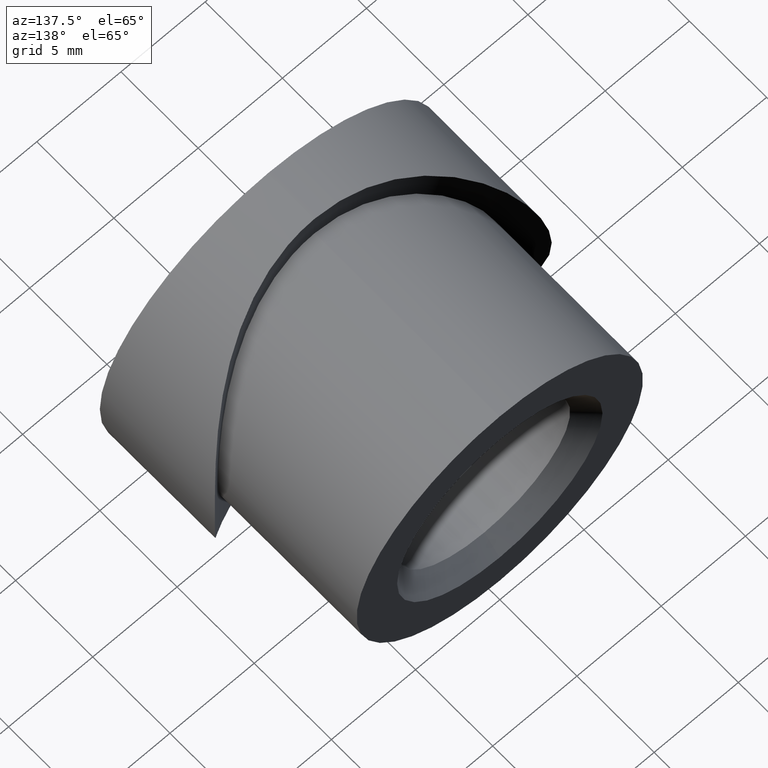
[diagram: clean part render]
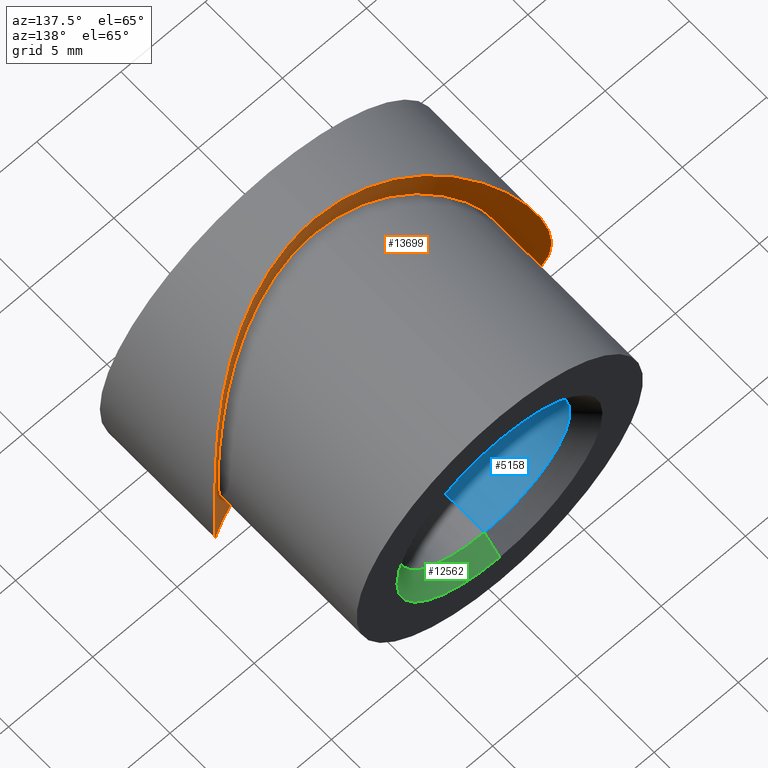
[diagram: same view with three faces highlighted in distinct colors, each labeled with its STEP entity id]
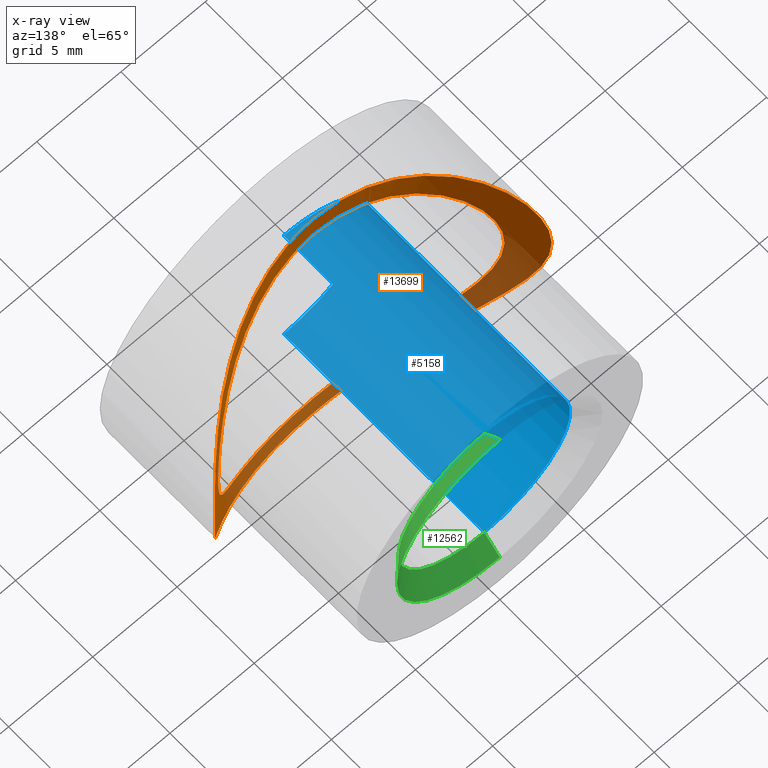
[diagram: x-ray of the same camera — body ghosted, the three highlighted faces saturated]
A machine part, auxiliary view with three faces highlighted in distinct colors.
The next image is the same camera in x-ray (body ghosted, the three faces saturated) — at least one of them is partly hidden behind the body in this view.
Their STEP definitions:

[orange] entity #13699 — the highlighted cylindrical surface (partial cylindrical patch) has radius 13.45 mm, axis along (-0, -0, 1).
#7 = CARTESIAN_POINT ( 'NONE',  ( -8.500175873248078800, 6.026492424508852300, -0.2796854804462817200 ) ) ;
#55 = CARTESIAN_POINT ( 'NONE',  ( -7.612991161103129100, 5.358746173430602300, 3.821309508722853500 ) ) ;
#102 = CARTESIAN_POINT ( 'NONE',  ( -6.900764176588434200, 4.903866751921642100, 4.970120762304397900 ) ) ;
#285 = CARTESIAN_POINT ( 'NONE',  ( -2.275365995284327300, 3.181942036199322500, -8.209564339675338800 ) ) ;
#331 = CARTESIAN_POINT ( 'NONE',  ( -0.2889378149297785500, 2.999999999999996400, -8.499999999999998200 ) ) ;
#335 = CARTESIAN_POINT ( 'NONE',  ( 9.639878361173988000, 7.069446285023819800, 2.679750404850660400 ) ) ;
#389 = ORIENTED_EDGE ( 'NONE', *, *, #7281, .T. ) ;
#434 = CARTESIAN_POINT ( 'NONE',  ( 0.0000000000000000000, 16.44999999999999900, -10.00000000000000000 ) ) ;
#435 = CARTESIAN_POINT ( 'NONE',  ( 9.982610433713347200, 7.435974106570739700, 0.6810471933536530500 ) ) ;
#481 = CARTESIAN_POINT ( 'NONE',  ( 5.111962595166546400, 4.005593408410363500, -8.600777973116308300 ) ) ;
#511 = ORIENTED_EDGE ( 'NONE', *, *, #12672, .F. ) ;
#606 = FACE_BOUND ( 'NONE', #5147, .T. ) ;
#660 = CARTESIAN_POINT ( 'NONE',  ( -7.332763691606595000, 5.171689255180033300, 6.806509566438757400 ) ) ;
#709 = CARTESIAN_POINT ( 'NONE',  ( -9.654513952800341400, 7.083405606150288100, -2.692520971745766100 ) ) ;
#735 = CARTESIAN_POINT ( 'NONE',  ( 1.224646865619358800E-015, 2.999999999999996900, 10.00000000000000000 ) ) ;
#755 = CARTESIAN_POINT ( 'NONE',  ( -2.693214239503646900, 3.268322119340624400, 9.636333990754822700 ) ) ;
#803 = CARTESIAN_POINT ( 'NONE',  ( -9.999977895142121700, 7.455393721915363000, 0.3456165514657086900 ) ) ;
#895 = CARTESIAN_POINT ( 'NONE',  ( 8.272232801458596200, 5.844440733795266900, 1.975094218430345900 ) ) ;
#965 = B_SPLINE_CURVE_WITH_KNOTS ( 'NONE', 3,
 ( #5951, #1515, #3647, #1473, #4727, #5797, #8087, #9226, #2565, #481, #8187, #7114, #9141, #12461, #3787, #9178, #10332, #3695, #13581, #1426, #8235, #3598, #12558, #11447, #13678, #11364, #5847, #3741, #435, #7068, #6970, #1376, #335, #2522, #11543, #11493, #4872, #5998, #5900, #9273, #10287, #4779, #2610, #8039, #12507, #1561, #13725, #9317, #2658, #10425 ),
 .UNSPECIFIED., .F., .F.,
 ( 4, 2, 2, 2, 2, 2, 2, 2, 2, 2, 2, 2, 2, 2, 2, 2, 2, 2, 2, 2, 2, 2, 2, 2, 4 ),
 ( 1.432267645603894700E-019, 0.002044634869169815100, 0.003066952303754722300, 0.004089269738339628600, 0.005111587172924535700, 0.006133904607509442800, 0.008178539476679257100, 0.009200856911264168600, 0.01022317434584907500, 0.01226780921501889300, 0.01329012664960380400, 0.01431244408418871600, 0.01533476151877362500, 0.01635707895335853900, 0.01737939638794344700, 0.01840171382252836100, 0.01942403125711327300, 0.02044634869169818100, 0.02249098356086800700, 0.02351330099545291500, 0.02453561843003782700, 0.02658025329920765000, 0.02862488816837747300, 0.03066952303754729900, 0.03271415790671712600 ),
 .UNSPECIFIED. ) ;
#992 = CARTESIAN_POINT ( 'NONE',  ( 6.746681932692522000, 4.809066676585230100, 5.198683946631315500 ) ) ;
#1089 = CARTESIAN_POINT ( 'NONE',  ( 0.5792395147149966800, 2.999999999999996400, -8.500000000000001800 ) ) ;
#1105 = CARTESIAN_POINT ( 'NONE',  ( -1.139145406963695500, 3.036483189630236900, 8.442621825578633800 ) ) ;
#1152 = CARTESIAN_POINT ( 'NONE',  ( -8.486057597824270700, 6.014930927325920600, -0.5641180148461151200 ) ) ;
#1315 = CARTESIAN_POINT ( 'NONE',  ( 1.149718743651191100, 3.046173087354749700, 8.426778134345596500 ) ) ;
#1376 = CARTESIAN_POINT ( 'NONE',  ( 9.723699100847467100, 7.156879312681614800, 2.358572600559647000 ) ) ;
#1426 = CARTESIAN_POINT ( 'NONE',  ( 9.328360622382760400, 6.759073173045164800, -3.617378218463643200 ) ) ;
#1473 = CARTESIAN_POINT ( 'NONE',  ( 2.361936728301609700, 3.204783231972737000, -9.722932823276236600 ) ) ;
#1515 = CARTESIAN_POINT ( 'NONE',  ( 0.6928124693824041500, 2.999999999999996900, -10.00000000000000000 ) ) ;
#1561 = CARTESIAN_POINT ( 'NONE',  ( 3.339930489356901500, 3.405910383273057700, 9.448747293761261500 ) ) ;
#1746 = CARTESIAN_POINT ( 'NONE',  ( -9.981761949518915600, 7.435031219351060400, 0.6932880819230860000 ) ) ;
#1793 = CARTESIAN_POINT ( 'NONE',  ( -9.327444656109323200, 6.758218848093421500, 3.619488619934345700 ) ) ;
#1840 = CARTESIAN_POINT ( 'NONE',  ( -9.722718940331901600, 7.155853788049833900, 2.362507923113869700 ) ) ;
#1889 = CARTESIAN_POINT ( 'NONE',  ( -7.553097224796675700, 5.308946874151402500, -6.583623013612188000 ) ) ;
#1988 = CARTESIAN_POINT ( 'NONE',  ( -6.658377051632968800, 4.760444234760949900, -7.467753764576831300 ) ) ;
#2084 = CARTESIAN_POINT ( 'NONE',  ( 8.213144656435922300, 5.797880320624016400, -2.261316873074024500 ) ) ;
#2105 = CARTESIAN_POINT ( 'NONE',  ( -3.057591812896682400, 3.349479976828228600, 7.935909559820935900 ) ) ;
#2132 = CARTESIAN_POINT ( 'NONE',  ( 8.042672949559547000, 5.666336791972201000, -2.805008992030661100 ) ) ;
#2154 = CARTESIAN_POINT ( 'NONE',  ( -2.255784632174870900, 3.187676294430515300, 8.200067566575407700 ) ) ;
#2196 = CARTESIAN_POINT ( 'NONE',  ( -5.223704418168273900, 4.046379758787070500, 6.727707479755836500 ) ) ;
#2338 = CARTESIAN_POINT ( 'NONE',  ( -1.152364690619607000, 3.046372695558841900, -8.426461002746975700 ) ) ;
#2425 = VERTEX_POINT ( 'NONE', #735 ) ;
#2471 = CYLINDRICAL_SURFACE ( 'NONE', #12947, 13.45000000000000100 ) ;
#2522 = CARTESIAN_POINT ( 'NONE',  ( 9.442819036225074600, 6.871105937171593700, 3.307791665089129900 ) ) ;
#2565 = CARTESIAN_POINT ( 'NONE',  ( 4.542938130963912100, 3.786780420074221400, -8.914440894159248800 ) ) ;
#2610 = CARTESIAN_POINT ( 'NONE',  ( 6.181966442926166000, 4.490786429201897100, 7.886136779715221800 ) ) ;
#2658 = CARTESIAN_POINT ( 'NONE',  ( 0.6836301136196195600, 2.999999999999996400, 9.999999999999998200 ) ) ;
#2803 = CARTESIAN_POINT ( 'NONE',  ( -1.370352680204483000, 3.065584903745286500, 9.911641172185859700 ) ) ;
#2853 = CARTESIAN_POINT ( 'NONE',  ( -9.911372312729261200, 7.357699267434973000, 1.371465952863617500 ) ) ;
#2955 = CARTESIAN_POINT ( 'NONE',  ( -8.952648161923738400, 6.406595511195461300, 4.500864096956267000 ) ) ;
#3011 = CARTESIAN_POINT ( 'NONE',  ( -4.559132965745660300, 3.780323342721628100, 8.924776339083310400 ) ) ;
#3062 = CARTESIAN_POINT ( 'NONE',  ( 5.226909659594428900, 4.047571902342230700, -6.725588191749118900 ) ) ;
#3159 = CARTESIAN_POINT ( 'NONE',  ( -6.169942369151726800, 4.495439777570549500, -7.876112138067259800 ) ) ;
#3212 = CARTESIAN_POINT ( 'NONE',  ( -0.3456757120790550100, 2.999999999999996000, -9.999999999999992900 ) ) ;
#3227 = CARTESIAN_POINT ( 'NONE',  ( -8.385859457549054600, 5.934055155121853900, -1.417184372340660700 ) ) ;
#3255 = CARTESIAN_POINT ( 'NONE',  ( 6.213916181435961600, 4.519576077072032100, -5.806026683379980300 ) ) ;
#3272 = CARTESIAN_POINT ( 'NONE',  ( -8.215429990002759200, 5.799640880773095500, -2.254087759438235100 ) ) ;
#3298 = CARTESIAN_POINT ( 'NONE',  ( 1.430640203736850900, 3.073398863584304600, 8.383490870426232500 ) ) ;
#3358 = CARTESIAN_POINT ( 'NONE',  ( -8.046441304176282100, 5.669075725946751000, 2.795500513134633500 ) ) ;
#3387 = CARTESIAN_POINT ( 'NONE',  ( 4.541824832585228400, 3.787763508574210300, 7.189971442628251300 ) ) ;
#3598 = CARTESIAN_POINT ( 'NONE',  ( 9.639743922445001400, 7.069306619524739200, -2.680255240991826300 ) ) ;
#3647 = CARTESIAN_POINT ( 'NONE',  ( 1.369403654986343100, 3.053161455334599200, -9.928816888606604600 ) ) ;
#3695 = CARTESIAN_POINT ( 'NONE',  ( 8.649230539514967100, 6.140309248789511900, -5.057846401117871900 ) ) ;
#3741 = CARTESIAN_POINT ( 'NONE',  ( 10.00001195805195100, 7.455431592392099700, 0.3408204138369244600 ) ) ;
#3787 = CARTESIAN_POINT ( 'NONE',  ( 7.541389901650789300, 5.310464725808679500, -6.574678123903396500 ) ) ;
#3933 = CARTESIAN_POINT ( 'NONE',  ( -3.647908865428769700, 3.500241859040008800, 9.316764053845558300 ) ) ;
#4025 = CARTESIAN_POINT ( 'NONE',  ( -5.125402177620010500, 4.001132583004995500, 8.610669834195389800 ) ) ;
#4175 = CARTESIAN_POINT ( 'NONE',  ( 8.034839785016947300, 5.663215320660387200, 2.787476035339022700 ) ) ;
#4229 = CARTESIAN_POINT ( 'NONE',  ( -3.660928046515671500, 3.503953304415936600, -9.311603496860344700 ) ) ;
#4280 = CARTESIAN_POINT ( 'NONE',  ( 8.201125407602745600, 5.789094028268530100, 2.251713806693307800 ) ) ;
#4329 = CARTESIAN_POINT ( 'NONE',  ( 1.480016496645224400E-016, 2.999999999999997300, -10.00000000000000000 ) ) ;
#4348 = CARTESIAN_POINT ( 'NONE',  ( -6.395797733192636300, 4.616348684314131900, -5.605135866156802000 ) ) ;
#4395 = CARTESIAN_POINT ( 'NONE',  ( -5.640988934732198400, 4.232652308179298800, -6.381313976993380900 ) ) ;
#4490 = CARTESIAN_POINT ( 'NONE',  ( -7.725936159783328700, 5.439550844503355800, -3.554860141302640400 ) ) ;
#4535 = CARTESIAN_POINT ( 'NONE',  ( -6.739968371851108300, 4.808956142749554600, 5.186111273598413600 ) ) ;
#4727 = CARTESIAN_POINT ( 'NONE',  ( 2.690427507752437100, 3.267702392545322400, -9.637184652507045300 ) ) ;
#4779 = CARTESIAN_POINT ( 'NONE',  ( 6.663736969602333600, 4.755219293914633400, 7.482572283424668000 ) ) ;
#4872 = CARTESIAN_POINT ( 'NONE',  ( 8.647152279869523300, 6.138538418109910700, 5.061471254169259900 ) ) ;
#5027 = CARTESIAN_POINT ( 'NONE',  ( 1.480016496645224400E-016, 2.999999999999997300, -10.00000000000000000 ) ) ;
#5063 = CARTESIAN_POINT ( 'NONE',  ( -5.920765303193742400, 4.369750619852039700, 8.065226831494932500 ) ) ;
#5113 = CARTESIAN_POINT ( 'NONE',  ( -8.127492011892865500, 5.731048241642624500, 5.834603666426794200 ) ) ;
#5147 = EDGE_LOOP ( 'NONE', ( #11597, #389 ) ) ;
#5213 = CARTESIAN_POINT ( 'NONE',  ( -8.953664433035914500, 6.407435470530977300, -4.499463903643729200 ) ) ;
#5243 = ORIENTED_EDGE ( 'NONE', *, *, #10605, .F. ) ;
#5312 = CARTESIAN_POINT ( 'NONE',  ( 5.216873861441369400, 4.043616553864677800, 6.732731669731116100 ) ) ;
#5360 = CARTESIAN_POINT ( 'NONE',  ( -1.377793393266360600, 3.066373353554716200, -9.910576755955354100 ) ) ;
#5384 = VERTEX_POINT ( 'NONE', #13520 ) ;
#5405 = CARTESIAN_POINT ( 'NONE',  ( 7.939366262903695000, 5.592449133052320500, 3.048414062834695400 ) ) ;
#5451 = CARTESIAN_POINT ( 'NONE',  ( 6.404388853050261500, 4.614843655872771700, 5.615161143631574700 ) ) ;
#5514 = CARTESIAN_POINT ( 'NONE',  ( -5.225970053679573900, 4.047364419143546500, -6.725885423336595900 ) ) ;
#5590 = EDGE_LOOP ( 'NONE', ( #5243, #511 ) ) ;
#5726 = CARTESIAN_POINT ( 'NONE',  ( 3.572725185688622000, 3.480434726805918800, 7.717824687037374800 ) ) ;
#5797 = CARTESIAN_POINT ( 'NONE',  ( 3.333577867812950800, 3.415483170243556600, -9.434033432218480900 ) ) ;
#5847 = CARTESIAN_POINT ( 'NONE',  ( 9.999988029650376500, 7.455404989263312700, -0.3415217745901048500 ) ) ;
#5900 = CARTESIAN_POINT ( 'NONE',  ( 7.936587232922568600, 5.588490723815538400, 6.091752204375290500 ) ) ;
#5951 = CARTESIAN_POINT ( 'NONE',  ( 1.480016496645224400E-016, 2.999999999999997300, -10.00000000000000000 ) ) ;
#5997 = DIRECTION ( 'NONE',  ( -0.0000000000000000000, -0.0000000000000000000, 1.000000000000000000 ) ) ;
#5998 = CARTESIAN_POINT ( 'NONE',  ( 8.123208101144644600, 5.727815718240517400, 5.840498574394712400 ) ) ;
#6189 = CARTESIAN_POINT ( 'NONE',  ( -6.661698974098986700, 4.762377204899780600, 7.464712109148377000 ) ) ;
#6241 = CARTESIAN_POINT ( 'NONE',  ( -9.929519584366760300, 7.375454775726205400, -1.365265421734621000 ) ) ;
#6290 = CARTESIAN_POINT ( 'NONE',  ( -9.637451730022753800, 7.066947292307562000, 2.688473457017360500 ) ) ;
#6481 = CARTESIAN_POINT ( 'NONE',  ( 6.902535138892500500, 4.904916219338627300, -4.967719128159848700 ) ) ;
#6534 = CARTESIAN_POINT ( 'NONE',  ( -2.376514775901076100, 3.207379302557241500, -9.719397923783720500 ) ) ;
#6579 = CARTESIAN_POINT ( 'NONE',  ( -5.129290870506729000, 4.003007537345904000, -8.607872855251065000 ) ) ;
#6597 = CARTESIAN_POINT ( 'NONE',  ( -4.308156095992034200, 3.706070697626767400, 7.332590547434656400 ) ) ;
#6628 = CARTESIAN_POINT ( 'NONE',  ( -3.345668504506728300, 3.418583204672849300, -9.429752002093128000 ) ) ;
#6648 = CARTESIAN_POINT ( 'NONE',  ( -8.427030926928527100, 5.967201911122325300, 1.147974239795132900 ) ) ;
#6696 = CARTESIAN_POINT ( 'NONE',  ( -5.640021965118812400, 4.232145397260779000, 6.382357838078927000 ) ) ;
#6811 = CARTESIAN_POINT ( 'NONE',  ( 6.704909903060782200E-014, 2.999999999999513700, 8.500000000000765600 ) ) ;
#6970 = CARTESIAN_POINT ( 'NONE',  ( 9.860233819173661400, 7.301874216862191100, 1.699699369640559600 ) ) ;
#7068 = CARTESIAN_POINT ( 'NONE',  ( 9.913006127448383600, 7.359483876266066800, 1.359649170936497500 ) ) ;
#7114 = CARTESIAN_POINT ( 'NONE',  ( 6.184840822006905500, 4.492068991472705400, -7.884254400224293100 ) ) ;
#7281 = EDGE_CURVE ( 'NONE', #12417, #5384, #13207, .T. ) ;
#7304 = CARTESIAN_POINT ( 'NONE',  ( -6.892677501451333700, 4.897480211025297500, 7.251826852314725800 ) ) ;
#7352 = CARTESIAN_POINT ( 'NONE',  ( -3.332398114870711600, 3.415232741113633600, 9.434376424822581000 ) ) ;
#7404 = CARTESIAN_POINT ( 'NONE',  ( -9.859276388493091400, 7.300842306687519200, 1.705103039340171200 ) ) ;
#7503 = CARTESIAN_POINT ( 'NONE',  ( -1.706728546298531300, 3.104531874529787800, 9.859066267355034400 ) ) ;
#7550 = CARTESIAN_POINT ( 'NONE',  ( 6.739732142945722900, 4.808801996569124000, -5.186489111393125700 ) ) ;
#7600 = CARTESIAN_POINT ( 'NONE',  ( 2.804536432448860400, 3.284999034762399600, -8.043319610308683900 ) ) ;
#7643 = CARTESIAN_POINT ( 'NONE',  ( 5.643211233748562700, 4.233709886629712000, -6.379260741137814600 ) ) ;
#7721 = B_SPLINE_CURVE_WITH_KNOTS ( 'NONE', 3,
 ( #13236, #1089, #14175, #13187, #7600, #8812, #10920, #3062, #7643, #3255, #14352, #7550, #6481, #12019, #10815, #2132, #2084, #7741, #14222, #8856, #9895, #9847, #9695, #895, #4280, #4175, #5405, #12067, #13148, #992, #5451, #11923, #5312, #3387, #12251, #9943, #5726, #9033, #13369, #3298, #1315, #11248, #10074, #6811 ),
 .UNSPECIFIED., .F., .F.,
 ( 4, 2, 2, 2, 2, 2, 2, 2, 2, 2, 2, 2, 2, 2, 2, 2, 2, 2, 2, 2, 2, 4 ),
 ( 2.424159808634754100E-019, 0.001710273666269492500, 0.003420547332538985000, 0.005130820998808479800, 0.006841094665077975200, 0.007696231498212723200, 0.008551368331347470500, 0.01026164199761696700, 0.01197191566388646100, 0.01282705249702120900, 0.01368218933015595700, 0.01539246299642545300, 0.01624759982956020000, 0.01710273666269494800, 0.01881301032896444700, 0.02052328399523394700, 0.02223355766150344700, 0.02308869449463819500, 0.02394383132777294300, 0.02565410499404244300, 0.02650924182717719400, 0.02736437866031193900 ),
 .UNSPECIFIED. ) ;
#7741 = CARTESIAN_POINT ( 'NONE',  ( 8.383439508370072300, 5.932126321716803700, -1.431002025329638000 ) ) ;
#7758 = CARTESIAN_POINT ( 'NONE',  ( -7.605744980889992000, 5.355871924725391000, -3.804930131842815000 ) ) ;
#7808 = CARTESIAN_POINT ( 'NONE',  ( -8.485348872305136700, 6.014351456145276700, 0.5758034507651039700 ) ) ;
#7850 = CARTESIAN_POINT ( 'NONE',  ( -6.902231944866415800, 4.904731779995170600, -4.968157060046266300 ) ) ;
#8035 = CARTESIAN_POINT ( 'NONE',  ( -1.677486838287417800E-016, 2.999999999999996400, -8.500000000000000000 ) ) ;
#8039 = CARTESIAN_POINT ( 'NONE',  ( 5.128552927785058600, 4.002612997085131000, 8.608472993321735000 ) ) ;
#8087 = CARTESIAN_POINT ( 'NONE',  ( 3.645099090485948600, 3.499487306597341500, -9.317807476157451400 ) ) ;
#8187 = CARTESIAN_POINT ( 'NONE',  ( 5.389062262098942600, 4.123363174215502800, -8.429794706603226800 ) ) ;
#8235 = CARTESIAN_POINT ( 'NONE',  ( 9.442537252971174400, 6.870826684151739800, -3.308613194894672200 ) ) ;
#8420 = CARTESIAN_POINT ( 'NONE',  ( -8.652884237711754500, 6.143288246280512500, 5.051979786124730000 ) ) ;
#8515 = CARTESIAN_POINT ( 'NONE',  ( -7.541868453716253000, 5.310805659112412900, 6.574080973460612000 ) ) ;
#8525 = B_SPLINE_CURVE_WITH_KNOTS ( 'NONE', 3,
 ( #9649, #14025, #10567, #2803, #7503, #13974, #755, #7352, #3933, #3011, #4025, #5063, #12796, #6189, #7304, #660, #8515, #9503, #5113, #8420, #2955, #1793, #9551, #6290, #1840, #7404, #2853, #1746, #803, #11732, #6241, #709, #9601, #5213, #12949, #14074, #1889, #8566, #1988, #3159, #13041, #6579, #9746, #4229, #6628, #12116, #6534, #11014, #5360, #8667, #3212, #4329 ),
 .UNSPECIFIED., .F., .F.,
 ( 4, 2, 2, 2, 2, 2, 2, 2, 2, 2, 2, 2, 2, 2, 2, 2, 2, 2, 2, 2, 2, 2, 2, 2, 2, 4 ),
 ( 0.03271415790671712600, 0.03373431941589433200, 0.03475448092507154400, 0.03577464243424875000, 0.03679480394342595600, 0.03883512696178037500, 0.03985528847095758100, 0.04087544998013478700, 0.04189561148931199300, 0.04291577299848919900, 0.04495609601684361100, 0.04597625752602081700, 0.04699641903519803000, 0.04801658054437523600, 0.04903674205355244800, 0.05107706507190686000, 0.05311738809026127900, 0.05515771110861569800, 0.05719803412697010300, 0.05821819563614730900, 0.05923835714532451500, 0.06127868016367892700, 0.06229884167285613300, 0.06331900318203334500, 0.06433916469121053700, 0.06535932620038774300 ),
 .UNSPECIFIED. ) ;
#8566 = CARTESIAN_POINT ( 'NONE',  ( -6.891752116506600200, 4.896917581239202700, -7.252730188196417200 ) ) ;
#8667 = CARTESIAN_POINT ( 'NONE',  ( -0.6949154676624639300, 3.013599092808664400, -9.981730248960568400 ) ) ;
#8782 = CARTESIAN_POINT ( 'NONE',  ( -7.352293673409922000, 5.181848663023594700, 4.299344623432571000 ) ) ;
#8812 = CARTESIAN_POINT ( 'NONE',  ( 3.830459733445616100, 3.546114800336617600, -7.608415944528853300 ) ) ;
#8856 = CARTESIAN_POINT ( 'NONE',  ( 8.484888285087954800, 6.013977093938762200, -0.5817263091585258600 ) ) ;
#8875 = CARTESIAN_POINT ( 'NONE',  ( -3.820437731939016600, 3.551465255785948300, 7.598114806985881500 ) ) ;
#8922 = CARTESIAN_POINT ( 'NONE',  ( -8.429129136226151800, 5.968892133467311300, -1.131894294131854200 ) ) ;
#8969 = CARTESIAN_POINT ( 'NONE',  ( -0.5731410082796143400, 2.999999999999984900, 8.500000000000026600 ) ) ;
#9008 = CARTESIAN_POINT ( 'NONE',  ( -4.322206822252720600, 3.704229700047383800, -7.339402285982108000 ) ) ;
#9033 = CARTESIAN_POINT ( 'NONE',  ( 2.795327885533562800, 3.282821238976782100, 8.046917088024946100 ) ) ;
#9050 = CARTESIAN_POINT ( 'NONE',  ( -3.829268376509317400, 3.545862861190532300, -7.608826339036824900 ) ) ;
#9093 = CARTESIAN_POINT ( 'NONE',  ( -0.5785109653252723500, 3.009371504295425200, -8.485193838328081400 ) ) ;
#9141 = CARTESIAN_POINT ( 'NONE',  ( 6.667854977889002800, 4.757571410311298300, -7.478910675423984200 ) ) ;
#9178 = CARTESIAN_POINT ( 'NONE',  ( 7.939709596505474900, 5.590772619710363300, -6.087689677111777400 ) ) ;
#9226 = CARTESIAN_POINT ( 'NONE',  ( 4.249782439530880800, 3.685131194638158600, -9.058014835429016600 ) ) ;
#9273 = CARTESIAN_POINT ( 'NONE',  ( 7.538211159503913600, 5.308313719316934100, 6.578315463705839900 ) ) ;
#9317 = CARTESIAN_POINT ( 'NONE',  ( 1.360598588629004200, 3.051824042411498600, 9.930632733466973500 ) ) ;
#9421 = FACE_OUTER_BOUND ( 'NONE', #5590, .T. ) ;
#9503 = CARTESIAN_POINT ( 'NONE',  ( -7.938922584159185700, 5.590214618145086700, 6.088663943880005600 ) ) ;
#9551 = CARTESIAN_POINT ( 'NONE',  ( -9.439775459402183000, 6.868100749855419600, 3.316474732856233000 ) ) ;
#9601 = CARTESIAN_POINT ( 'NONE',  ( -9.456094502171819000, 6.879029000464081300, -3.315955211639789000 ) ) ;
#9649 = CARTESIAN_POINT ( 'NONE',  ( 1.224646865619358800E-015, 2.999999999999996900, 10.00000000000000000 ) ) ;
#9689 = VERTEX_POINT ( 'NONE', #5027 ) ;
#9695 = CARTESIAN_POINT ( 'NONE',  ( 8.442468511799843300, 5.978700323775350400, 1.139322693571184700 ) ) ;
#9746 = CARTESIAN_POINT ( 'NONE',  ( -4.567579597613748100, 3.783516926806597300, -8.920237216436012400 ) ) ;
#9847 = CARTESIAN_POINT ( 'NONE',  ( 8.500208445155836400, 6.026518985404544000, 0.5730397153542531300 ) ) ;
#9867 = CARTESIAN_POINT ( 'NONE',  ( -8.212584766651270100, 5.797444908355589500, 2.263484606824143000 ) ) ;
#9895 = CARTESIAN_POINT ( 'NONE',  ( 8.499894938424999300, 6.026263335352346000, -0.2911452684744873500 ) ) ;
#9912 = CARTESIAN_POINT ( 'NONE',  ( -8.499820828412785200, 6.026202902140204800, 0.2902752641914243500 ) ) ;
#9943 = CARTESIAN_POINT ( 'NONE',  ( 3.824580707031427300, 3.552731204774534300, 7.595955122778975400 ) ) ;
#10009 = CARTESIAN_POINT ( 'NONE',  ( -6.214268459589288100, 4.519736078890439000, 5.805725824324754000 ) ) ;
#10049 = CARTESIAN_POINT ( 'NONE',  ( -3.570401055810470000, 3.479852395886745300, 7.718792945572358700 ) ) ;
#10074 = CARTESIAN_POINT ( 'NONE',  ( 0.2872468593113261500, 2.999999999999995600, 8.500000000000008900 ) ) ;
#10287 = CARTESIAN_POINT ( 'NONE',  ( 7.326477332505043600, 5.167583306881559800, 6.813317803425127800 ) ) ;
#10332 = CARTESIAN_POINT ( 'NONE',  ( 8.126148033024673400, 5.730050316200749400, -5.836391687602374900 ) ) ;
#10425 = CARTESIAN_POINT ( 'NONE',  ( 1.224646865619358800E-015, 2.999999999999996900, 10.00000000000000000 ) ) ;
#10567 = CARTESIAN_POINT ( 'NONE',  ( -0.6855313130340954200, 3.013092589593228300, 9.982411733301891100 ) ) ;
#10605 = EDGE_CURVE ( 'NONE', #9689, #2425, #965, .T. ) ;
#10815 = CARTESIAN_POINT ( 'NONE',  ( 7.613986069280820800, 5.359499718473162300, -3.818360872907028200 ) ) ;
#10920 = CARTESIAN_POINT ( 'NONE',  ( 4.314049704428596100, 3.701283105549327200, -7.344596398868780800 ) ) ;
#11014 = CARTESIAN_POINT ( 'NONE',  ( -1.714010255846851500, 3.105450765976870200, -9.857823660614913700 ) ) ;
#11032 = CARTESIAN_POINT ( 'NONE',  ( -6.212929292344585800, 4.519054111074067800, -5.807106910244733900 ) ) ;
#11081 = CARTESIAN_POINT ( 'NONE',  ( -1.977701418290821700, 3.143212503757332000, 8.271642883192932100 ) ) ;
#11127 = CARTESIAN_POINT ( 'NONE',  ( -6.397184337130982900, 4.617117498396782000, 5.603477166230258700 ) ) ;
#11177 = CARTESIAN_POINT ( 'NONE',  ( -4.544731919628164400, 3.788779382979404100, 7.188198364270511400 ) ) ;
#11248 = CARTESIAN_POINT ( 'NONE',  ( 0.5784361452463168100, 3.009395820145267300, 8.485154950904583200 ) ) ;
#11364 = CARTESIAN_POINT ( 'NONE',  ( 9.982559641066435700, 7.435912690220182400, -0.6836836403932821100 ) ) ;
#11402 = CARTESIAN_POINT ( 'NONE',  ( -1.438860539985135100, 3.074230172349278400, -8.382167954140202300 ) ) ;
#11447 = CARTESIAN_POINT ( 'NONE',  ( 9.859340936306022500, 7.300916270196551300, -1.704512141714381600 ) ) ;
#11493 = CARTESIAN_POINT ( 'NONE',  ( 8.949117784116865000, 6.403294574025530900, 4.509069013459567000 ) ) ;
#11543 = CARTESIAN_POINT ( 'NONE',  ( 9.328864953637960900, 6.759545757067894700, 3.616197145803840200 ) ) ;
#11597 = ORIENTED_EDGE ( 'NONE', *, *, #12727, .T. ) ;
#11732 = CARTESIAN_POINT ( 'NONE',  ( -10.00004414824303300, 7.455467380816688000, -0.6893125917192929300 ) ) ;
#11923 = CARTESIAN_POINT ( 'NONE',  ( 5.635923456726213300, 4.230200940239127400, 6.386125432525388700 ) ) ;
#12019 = CARTESIAN_POINT ( 'NONE',  ( 7.355536502580664900, 5.183927652293942100, -4.294063515940028000 ) ) ;
#12067 = CARTESIAN_POINT ( 'NONE',  ( 7.617212660221831300, 5.361701608068303300, 3.812286860801932700 ) ) ;
#12116 = CARTESIAN_POINT ( 'NONE',  ( -2.702800912011380100, 3.270235636946565300, -9.633721388594239000 ) ) ;
#12133 = CARTESIAN_POINT ( 'NONE',  ( -8.049275485692831500, 5.671225266352315100, -2.787049485119284900 ) ) ;
#12225 = CARTESIAN_POINT ( 'NONE',  ( -7.204586373150045000, 5.090952536219923300, -4.518553483786896600 ) ) ;
#12251 = CARTESIAN_POINT ( 'NONE',  ( 4.308594662671007200, 3.706257535806192700, 7.332255031344181400 ) ) ;
#12270 = CARTESIAN_POINT ( 'NONE',  ( -7.345319258577258200, 5.181756150379791300, -4.286156204819507200 ) ) ;
#12359 = CARTESIAN_POINT ( 'NONE',  ( -2.808183980513899500, 3.285876241537336800, -8.041867773629455500 ) ) ;
#12417 = VERTEX_POINT ( 'NONE', #12779 ) ;
#12461 = CARTESIAN_POINT ( 'NONE',  ( 7.330318853176414100, 5.170080027165587600, -6.809186752839791800 ) ) ;
#12507 = CARTESIAN_POINT ( 'NONE',  ( 4.550574894693248500, 3.777365004438618900, 8.928954542547751700 ) ) ;
#12558 = CARTESIAN_POINT ( 'NONE',  ( 9.723344996237324600, 7.156513093708023000, -2.359772748320903000 ) ) ;
#12672 = EDGE_CURVE ( 'NONE', #2425, #9689, #8525, .T. ) ;
#12727 = EDGE_CURVE ( 'NONE', #5384, #12417, #7721, .T. ) ;
#12779 = CARTESIAN_POINT ( 'NONE',  ( 6.704909903060782200E-014, 2.999999999999513700, 8.500000000000765600 ) ) ;
#12796 = CARTESIAN_POINT ( 'NONE',  ( -6.176352763980944800, 4.498789753463347200, 7.871011791939004400 ) ) ;
#12947 = AXIS2_PLACEMENT_3D ( 'NONE', #434, #5997, #13724 ) ;
#12949 = CARTESIAN_POINT ( 'NONE',  ( -8.646062301844974500, 6.137603263642273700, -5.063396209677502000 ) ) ;
#13041 = CARTESIAN_POINT ( 'NONE',  ( -5.916736672815671800, 4.367847307103502900, -8.068054420129184800 ) ) ;
#13148 = CARTESIAN_POINT ( 'NONE',  ( 7.352590213727274300, 5.181971650279272100, 4.299238191457152200 ) ) ;
#13187 = CARTESIAN_POINT ( 'NONE',  ( 2.256383342684656200, 3.178809968353950100, -8.214611102826623300 ) ) ;
#13207 = B_SPLINE_CURVE_WITH_KNOTS ( 'NONE', 3,
 ( #13338, #8969, #1105, #11081, #2154, #13208, #2105, #10049, #8875, #6597, #11177, #2196, #6696, #10009, #11127, #4535, #102, #8782, #55, #3358, #9867, #14322, #6648, #7808, #9912, #7, #1152, #8922, #3227, #3272, #12133, #4490, #7758, #12270, #12225, #7850, #13257, #4348, #11032, #4395, #5514, #9008, #9050, #12359, #285, #11402, #2338, #9093, #331, #8035 ),
 .UNSPECIFIED., .F., .F.,
 ( 4, 2, 2, 2, 2, 2, 2, 2, 2, 2, 2, 2, 2, 2, 2, 2, 2, 2, 2, 2, 2, 2, 2, 2, 4 ),
 ( 0.02736437866031193900, 0.02907062529407963100, 0.02992374861096347800, 0.03077687192784732400, 0.03162999524473116700, 0.03248311856161501700, 0.03418936519538270900, 0.03504248851226655900, 0.03589561182915040200, 0.03760185846291809500, 0.03930810509668578000, 0.04016122841356963000, 0.04101435173045348000, 0.04186747504733732300, 0.04272059836422117300, 0.04442684499798886500, 0.04527996831487271500, 0.04613309163175655800, 0.04698621494864040100, 0.04783933826552425100, 0.04954558489929195000, 0.05125183153305965000, 0.05295807816682734200, 0.05381120148371119200, 0.05466432480059504200 ),
 .UNSPECIFIED. ) ;
#13208 = CARTESIAN_POINT ( 'NONE',  ( -2.794821213522113100, 3.290715491999064700, 8.032350016502334700 ) ) ;
#13236 = CARTESIAN_POINT ( 'NONE',  ( -1.677486838287417800E-016, 2.999999999999996400, -8.500000000000000000 ) ) ;
#13257 = CARTESIAN_POINT ( 'NONE',  ( -6.740609564213917400, 4.809307803744065500, -5.185360105606680000 ) ) ;
#13338 = CARTESIAN_POINT ( 'NONE',  ( 6.704909903060782200E-014, 2.999999999999513700, 8.500000000000765600 ) ) ;
#13369 = CARTESIAN_POINT ( 'NONE',  ( 2.260061934373336400, 3.179529869894584900, 8.213447651325816800 ) ) ;
#13520 = CARTESIAN_POINT ( 'NONE',  ( -1.677486838287417800E-016, 2.999999999999996400, -8.500000000000000000 ) ) ;
#13581 = CARTESIAN_POINT ( 'NONE',  ( 8.950193851065275700, 6.404302976158896300, -4.506548383729986900 ) ) ;
#13678 = CARTESIAN_POINT ( 'NONE',  ( 9.911747849590824400, 7.358106820803841200, -1.369735329806989200 ) ) ;
#13699 = ADVANCED_FACE ( 'NONE', ( #606, #9421 ), #2471, .F. ) ;
#13724 = DIRECTION ( 'NONE',  ( 1.000000000000000000, 0.0000000000000000000, 0.0000000000000000000 ) ) ;
#13725 = CARTESIAN_POINT ( 'NONE',  ( 2.701288846187134900, 3.256615821581380300, 9.652550625396894900 ) ) ;
#13974 = CARTESIAN_POINT ( 'NONE',  ( -2.368160578094832000, 3.205897263496887200, 9.721415816186743400 ) ) ;
#14025 = CARTESIAN_POINT ( 'NONE',  ( -0.3410942163538239200, 2.999999999999997300, 9.999999999999998200 ) ) ;
#14074 = CARTESIAN_POINT ( 'NONE',  ( -7.946616568972600300, 5.589465718430040500, -6.102758360716192600 ) ) ;
#14175 = CARTESIAN_POINT ( 'NONE',  ( 1.145997260451759600, 3.037228439869584100, -8.441433032303479000 ) ) ;
#14222 = CARTESIAN_POINT ( 'NONE',  ( 8.426624602826558800, 5.966875412869701000, -1.150535750086958900 ) ) ;
#14322 = CARTESIAN_POINT ( 'NONE',  ( -8.383208442797739600, 5.931941203953424900, 1.432408455467685500 ) ) ;
#14352 = CARTESIAN_POINT ( 'NONE',  ( 6.395136513713197200, 4.615993523547868600, -5.605879737581553000 ) ) ;

[blue] entity #5158 — the highlighted cylindrical surface (partial cylindrical patch) has radius 5.1 mm, axis along (-0, 1, -0).
#52 = EDGE_CURVE ( 'NONE', #4391, #4375, #1069, .T. ) ;
#139 = VECTOR ( 'NONE', #9894, 1000.000000000000000 ) ;
#418 = DIRECTION ( 'NONE',  ( -0.0000000000000000000, 1.000000000000000000, -0.0000000000000000000 ) ) ;
#472 = VECTOR ( 'NONE', #418, 1000.000000000000000 ) ;
#1039 = CARTESIAN_POINT ( 'NONE',  ( 6.245698675651496900E-016, 15.00000000000000000, -5.099999999999996100 ) ) ;
#1069 = CIRCLE ( 'NONE', #7388, 5.099999999999996100 ) ;
#1396 = CARTESIAN_POINT ( 'NONE',  ( 0.0000000000000000000, 0.9999999999999974500, 0.0000000000000000000 ) ) ;
#2628 = DIRECTION ( 'NONE',  ( 0.0000000000000000000, 0.0000000000000000000, 1.000000000000000000 ) ) ;
#2862 = DIRECTION ( 'NONE',  ( -0.0000000000000000000, 1.000000000000000000, -0.0000000000000000000 ) ) ;
#3904 = EDGE_CURVE ( 'NONE', #4094, #8751, #13303, .T. ) ;
#4094 = VERTEX_POINT ( 'NONE', #6312 ) ;
#4375 = VERTEX_POINT ( 'NONE', #4510 ) ;
#4391 = VERTEX_POINT ( 'NONE', #8942 ) ;
#4510 = CARTESIAN_POINT ( 'NONE',  ( 0.0000000000000000000, 13.99999999999999800, 5.099999999999996100 ) ) ;
#4652 = AXIS2_PLACEMENT_3D ( 'NONE', #8478, #2862, #7562 ) ;
#5138 = FACE_OUTER_BOUND ( 'NONE', #9238, .T. ) ;
#5158 = ADVANCED_FACE ( 'NONE', ( #5138 ), #11708, .F. ) ;
#5377 = ORIENTED_EDGE ( 'NONE', *, *, #6332, .F. ) ;
#5482 = LINE ( 'NONE', #6908, #472 ) ;
#6312 = CARTESIAN_POINT ( 'NONE',  ( 0.0000000000000000000, 0.9999999999999974500, 5.099999999999996100 ) ) ;
#6332 = EDGE_CURVE ( 'NONE', #4094, #4375, #5482, .T. ) ;
#6908 = CARTESIAN_POINT ( 'NONE',  ( 0.0000000000000000000, 15.00000000000000000, 5.099999999999996100 ) ) ;
#7388 = AXIS2_PLACEMENT_3D ( 'NONE', #10879, #11984, #11890 ) ;
#7562 = DIRECTION ( 'NONE',  ( 0.0000000000000000000, 0.0000000000000000000, 1.000000000000000000 ) ) ;
#7844 = ORIENTED_EDGE ( 'NONE', *, *, #8286, .T. ) ;
#8205 = DIRECTION ( 'NONE',  ( -0.0000000000000000000, -1.000000000000000000, -0.0000000000000000000 ) ) ;
#8286 = EDGE_CURVE ( 'NONE', #8751, #4391, #13289, .T. ) ;
#8478 = CARTESIAN_POINT ( 'NONE',  ( 0.0000000000000000000, 15.00000000000000000, 0.0000000000000000000 ) ) ;
#8507 = ORIENTED_EDGE ( 'NONE', *, *, #3904, .T. ) ;
#8751 = VERTEX_POINT ( 'NONE', #13540 ) ;
#8942 = CARTESIAN_POINT ( 'NONE',  ( 6.245698675651496900E-016, 13.99999999999999800, -5.099999999999996100 ) ) ;
#9238 = EDGE_LOOP ( 'NONE', ( #8507, #7844, #12818, #5377 ) ) ;
#9894 = DIRECTION ( 'NONE',  ( -0.0000000000000000000, 1.000000000000000000, -0.0000000000000000000 ) ) ;
#10879 = CARTESIAN_POINT ( 'NONE',  ( 0.0000000000000000000, 13.99999999999999800, 0.0000000000000000000 ) ) ;
#11153 = AXIS2_PLACEMENT_3D ( 'NONE', #1396, #8205, #2628 ) ;
#11708 = CYLINDRICAL_SURFACE ( 'NONE', #4652, 5.099999999999996100 ) ;
#11890 = DIRECTION ( 'NONE',  ( 0.0000000000000000000, 0.0000000000000000000, -1.000000000000000000 ) ) ;
#11984 = DIRECTION ( 'NONE',  ( 0.0000000000000000000, 1.000000000000000000, 0.0000000000000000000 ) ) ;
#12818 = ORIENTED_EDGE ( 'NONE', *, *, #52, .T. ) ;
#13289 = LINE ( 'NONE', #1039, #139 ) ;
#13303 = CIRCLE ( 'NONE', #11153, 5.099999999999996100 ) ;
#13540 = CARTESIAN_POINT ( 'NONE',  ( 6.245698675651496900E-016, 0.9999999999999974500, -5.099999999999996100 ) ) ;

[green] entity #12562 — the highlighted conical surface has half-angle 45 deg.
#409 = AXIS2_PLACEMENT_3D ( 'NONE', #8551, #9636, #10798 ) ;
#778 = CARTESIAN_POINT ( 'NONE',  ( 0.0000000000000000000, 13.99999999999999800, 0.0000000000000000000 ) ) ;
#1610 = CARTESIAN_POINT ( 'NONE',  ( 7.470345474798857300E-016, 15.00000000000000000, -6.100000000000001400 ) ) ;
#2175 = VECTOR ( 'NONE', #5712, 1000.000000000000100 ) ;
#2223 = ORIENTED_EDGE ( 'NONE', *, *, #5125, .F. ) ;
#2662 = CARTESIAN_POINT ( 'NONE',  ( 6.245698675651496900E-016, 13.99999999999999800, -5.099999999999996100 ) ) ;
#3785 = ORIENTED_EDGE ( 'NONE', *, *, #8777, .T. ) ;
#3886 = CONICAL_SURFACE ( 'NONE', #5154, 5.099999999999996100, 0.7853981633974503900 ) ;
#4250 = ORIENTED_EDGE ( 'NONE', *, *, #4720, .F. ) ;
#4375 = VERTEX_POINT ( 'NONE', #4510 ) ;
#4391 = VERTEX_POINT ( 'NONE', #8942 ) ;
#4510 = CARTESIAN_POINT ( 'NONE',  ( 0.0000000000000000000, 13.99999999999999800, 5.099999999999996100 ) ) ;
#4720 = EDGE_CURVE ( 'NONE', #4375, #4391, #8637, .T. ) ;
#4942 = CIRCLE ( 'NONE', #409, 6.100000000000001400 ) ;
#4973 = DIRECTION ( 'NONE',  ( 8.659560562354951300E-017, 0.7071067811865460200, -0.7071067811865489100 ) ) ;
#5125 = EDGE_CURVE ( 'NONE', #4391, #6135, #6566, .T. ) ;
#5154 = AXIS2_PLACEMENT_3D ( 'NONE', #10154, #9067, #12149 ) ;
#5187 = DIRECTION ( 'NONE',  ( 0.0000000000000000000, 0.0000000000000000000, -1.000000000000000000 ) ) ;
#5364 = CARTESIAN_POINT ( 'NONE',  ( 0.0000000000000000000, 15.00000000000000000, 6.100000000000001400 ) ) ;
#5712 = DIRECTION ( 'NONE',  ( 0.0000000000000000000, 0.7071067811865460200, 0.7071067811865489100 ) ) ;
#5874 = AXIS2_PLACEMENT_3D ( 'NONE', #778, #6362, #5187 ) ;
#6135 = VERTEX_POINT ( 'NONE', #1610 ) ;
#6235 = ORIENTED_EDGE ( 'NONE', *, *, #6657, .F. ) ;
#6362 = DIRECTION ( 'NONE',  ( 0.0000000000000000000, 1.000000000000000000, 0.0000000000000000000 ) ) ;
#6566 = LINE ( 'NONE', #2662, #8114 ) ;
#6644 = EDGE_LOOP ( 'NONE', ( #2223, #4250, #3785, #6235 ) ) ;
#6657 = EDGE_CURVE ( 'NONE', #6135, #10774, #4942, .T. ) ;
#7406 = LINE ( 'NONE', #8146, #2175 ) ;
#8114 = VECTOR ( 'NONE', #4973, 1000.000000000000100 ) ;
#8146 = CARTESIAN_POINT ( 'NONE',  ( 0.0000000000000000000, 13.99999999999999800, 5.099999999999996100 ) ) ;
#8551 = CARTESIAN_POINT ( 'NONE',  ( 0.0000000000000000000, 15.00000000000000000, 0.0000000000000000000 ) ) ;
#8637 = CIRCLE ( 'NONE', #5874, 5.099999999999996100 ) ;
#8777 = EDGE_CURVE ( 'NONE', #4375, #10774, #7406, .T. ) ;
#8942 = CARTESIAN_POINT ( 'NONE',  ( 6.245698675651496900E-016, 13.99999999999999800, -5.099999999999996100 ) ) ;
#9067 = DIRECTION ( 'NONE',  ( 0.0000000000000000000, 1.000000000000000000, 0.0000000000000000000 ) ) ;
#9636 = DIRECTION ( 'NONE',  ( 0.0000000000000000000, -1.000000000000000000, 0.0000000000000000000 ) ) ;
#10154 = CARTESIAN_POINT ( 'NONE',  ( 0.0000000000000000000, 13.99999999999999800, 0.0000000000000000000 ) ) ;
#10774 = VERTEX_POINT ( 'NONE', #5364 ) ;
#10798 = DIRECTION ( 'NONE',  ( 0.0000000000000000000, 0.0000000000000000000, -1.000000000000000000 ) ) ;
#12149 = DIRECTION ( 'NONE',  ( 0.0000000000000000000, 0.0000000000000000000, 1.000000000000000000 ) ) ;
#12219 = FACE_OUTER_BOUND ( 'NONE', #6644, .T. ) ;
#12562 = ADVANCED_FACE ( 'NONE', ( #12219 ), #3886, .F. ) ;